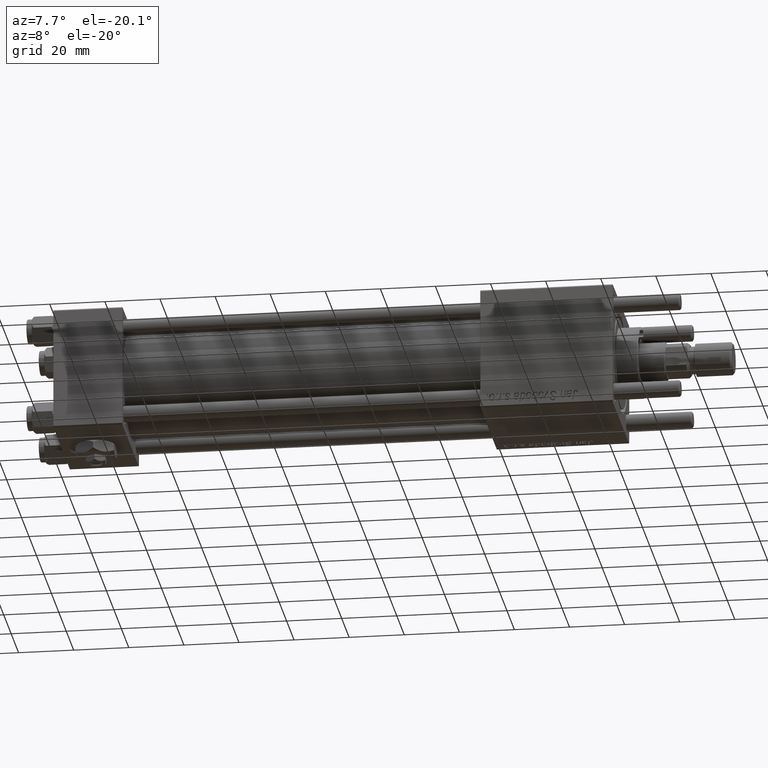
[diagram: clean part render]
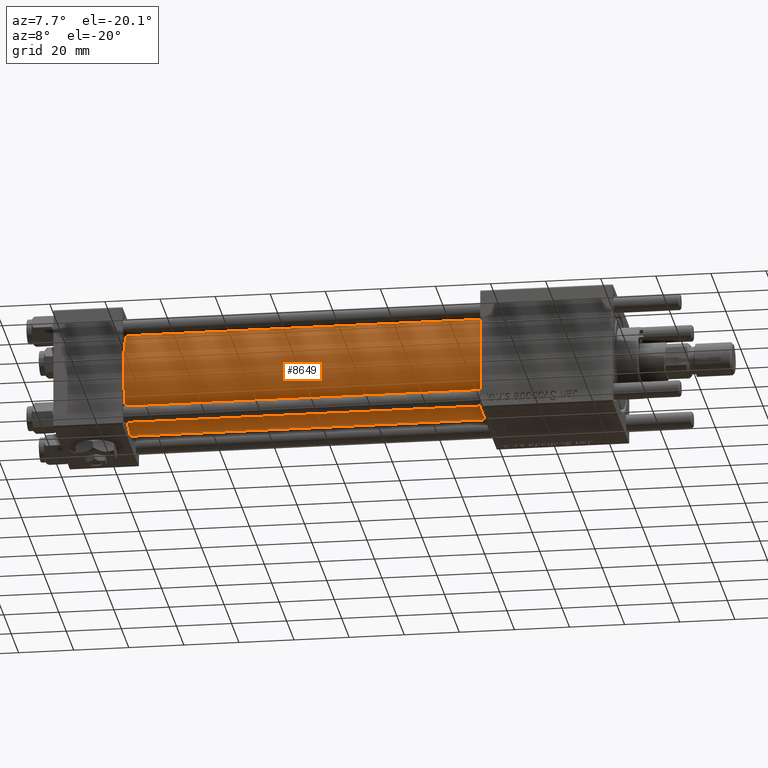
[diagram: same view with one face highlighted and labeled with its STEP entity id]
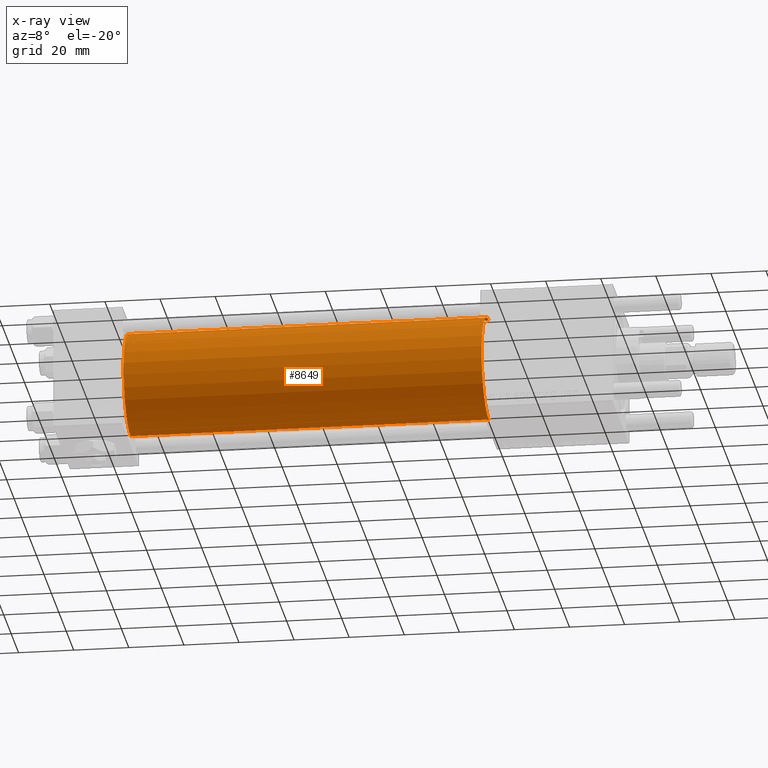
[diagram: x-ray of the same camera — body ghosted, the highlighted face saturated]
A machine part, auxiliary view. The second image highlights one B-rep face of the part: STEP entity #8649.
The next image is the same camera in x-ray: the body ghosted, the highlighted face saturated — about 0% of this face is hidden behind the body in this view.
In plain terms, the highlighted cylindrical surface (partial cylindrical patch) has radius 19 mm, axis along (-1, -0, -0).
Its self-contained STEP definition (entity closure, byte-faithful):
#1127 = AXIS2_PLACEMENT_3D ( 'NONE', #42391, #46901, #5353 ) ;
#3773 = DIRECTION ( 'NONE',  ( -1.000000000000000000, -0.000000000000000000, -0.000000000000000000 ) ) ;
#3915 = VERTEX_POINT ( 'NONE', #49954 ) ;
#4516 = DIRECTION ( 'NONE',  ( -1.000000000000000000, -0.000000000000000000, -0.000000000000000000 ) ) ;
#4525 = CARTESIAN_POINT ( 'NONE',  ( 155.0000000000000000, -2.602085213965210642E-15, 0.000000000000000000 ) ) ;
#5353 = DIRECTION ( 'NONE',  ( 0.000000000000000000, 0.000000000000000000, 1.000000000000000000 ) ) ;
#5717 = DIRECTION ( 'NONE',  ( 0.000000000000000000, 0.000000000000000000, 1.000000000000000000 ) ) ;
#7295 = VECTOR ( 'NONE', #3773, 1000.000000000000000 ) ;
#8649 = ADVANCED_FACE ( 'NONE', ( #29114 ), #49992, .T. ) ;
#15433 = EDGE_CURVE ( 'NONE', #54939, #3915, #47904, .T. ) ;
#17055 = EDGE_CURVE ( 'NONE', #58296, #38689, #37324, .T. ) ;
#17814 = CARTESIAN_POINT ( 'NONE',  ( 155.0000000000000000, -2.602085213965210642E-15, 19.00000000000000000 ) ) ;
#19563 = ORIENTED_EDGE ( 'NONE', *, *, #57108, .T. ) ;
#19737 = ORIENTED_EDGE ( 'NONE', *, *, #17055, .F. ) ;
#22816 = CARTESIAN_POINT ( 'NONE',  ( 155.0000000000000000, -2.602085213965210642E-15, 0.000000000000000000 ) ) ;
#22915 = CARTESIAN_POINT ( 'NONE',  ( 24.99999999999999289, -2.602085213965210642E-15, 19.00000000000000000 ) ) ;
#23931 = DIRECTION ( 'NONE',  ( -1.000000000000000000, -0.000000000000000000, -0.000000000000000000 ) ) ;
#28530 = EDGE_LOOP ( 'NONE', ( #31203, #19737, #19563, #35555 ) ) ;
#29114 = FACE_OUTER_BOUND ( 'NONE', #28530, .T. ) ;
#30756 = AXIS2_PLACEMENT_3D ( 'NONE', #22816, #35710, #54843 ) ;
#30990 = LINE ( 'NONE', #17814, #7295 ) ;
#31203 = ORIENTED_EDGE ( 'NONE', *, *, #58555, .F. ) ;
#32633 = CARTESIAN_POINT ( 'NONE',  ( 155.0000000000000000, -2.752562955852396712E-16, -19.00000000000000000 ) ) ;
#35555 = ORIENTED_EDGE ( 'NONE', *, *, #15433, .T. ) ;
#35710 = DIRECTION ( 'NONE',  ( 1.000000000000000000, 0.000000000000000000, 0.000000000000000000 ) ) ;
#37324 = CIRCLE ( 'NONE', #30756, 19.00000000000000000 ) ;
#38689 = VERTEX_POINT ( 'NONE', #32633 ) ;
#40187 = CARTESIAN_POINT ( 'NONE',  ( 155.0000000000000000, -2.602085213965210642E-15, 19.00000000000000000 ) ) ;
#42391 = CARTESIAN_POINT ( 'NONE',  ( 24.99999999999999289, -2.602085213965210642E-15, 0.000000000000000000 ) ) ;
#44886 = CARTESIAN_POINT ( 'NONE',  ( 155.0000000000000000, -2.752562955852396712E-16, -19.00000000000000000 ) ) ;
#46706 = AXIS2_PLACEMENT_3D ( 'NONE', #4525, #23931, #5717 ) ;
#46901 = DIRECTION ( 'NONE',  ( 1.000000000000000000, -0.000000000000000000, 0.000000000000000000 ) ) ;
#47904 = CIRCLE ( 'NONE', #1127, 19.00000000000000000 ) ;
#49954 = CARTESIAN_POINT ( 'NONE',  ( 24.99999999999999289, -2.752562955852396712E-16, -19.00000000000000000 ) ) ;
#49992 = CYLINDRICAL_SURFACE ( 'NONE', #46706, 19.00000000000000000 ) ;
#54108 = VECTOR ( 'NONE', #4516, 1000.000000000000000 ) ;
#54843 = DIRECTION ( 'NONE',  ( 0.000000000000000000, 0.000000000000000000, -1.000000000000000000 ) ) ;
#54939 = VERTEX_POINT ( 'NONE', #22915 ) ;
#57108 = EDGE_CURVE ( 'NONE', #58296, #54939, #30990, .T. ) ;
#58296 = VERTEX_POINT ( 'NONE', #40187 ) ;
#58387 = LINE ( 'NONE', #44886, #54108 ) ;
#58555 = EDGE_CURVE ( 'NONE', #38689, #3915, #58387, .T. ) ;